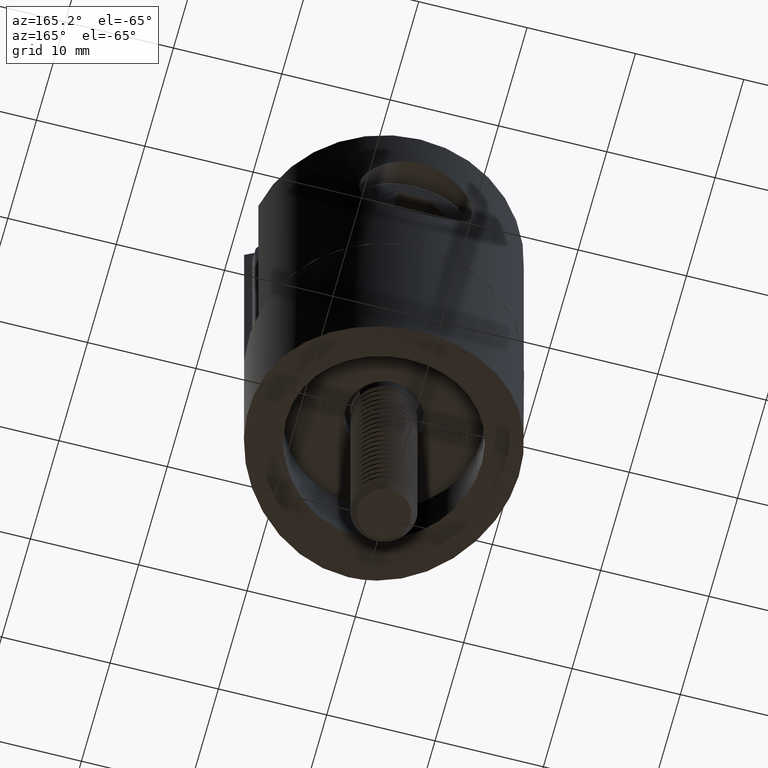
[diagram: clean part render]
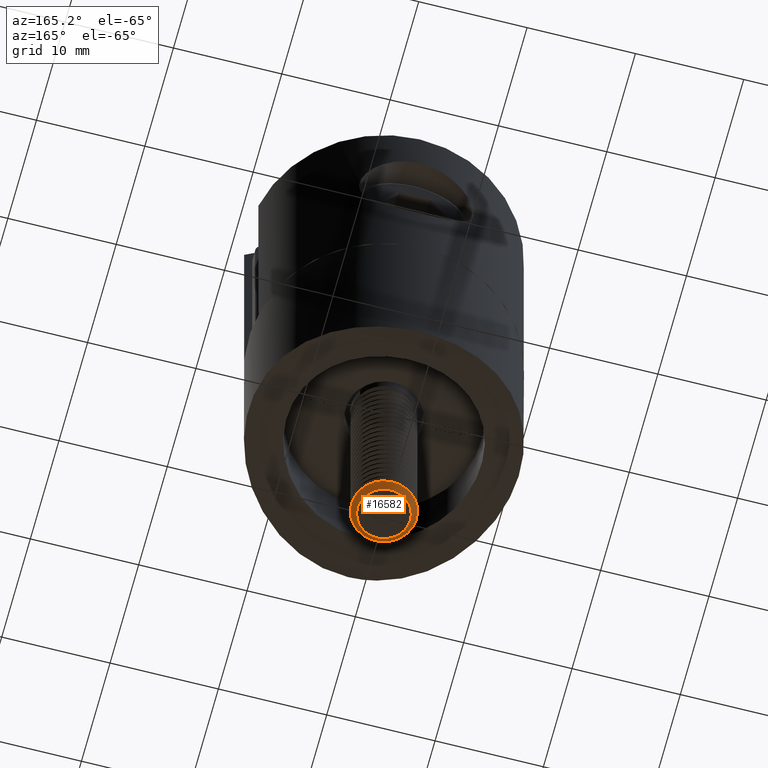
[diagram: same view with one face highlighted and labeled with its STEP entity id]
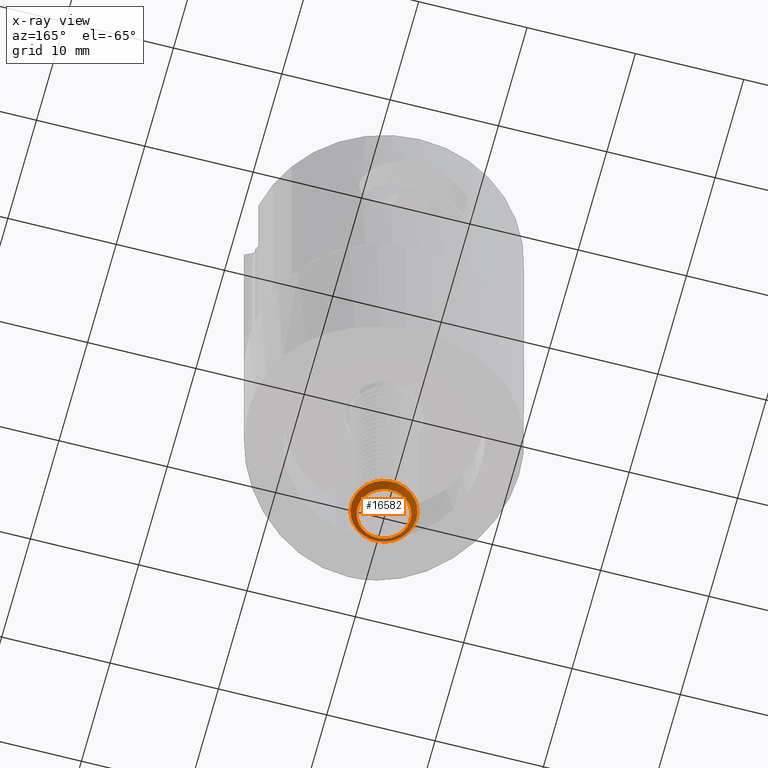
[diagram: x-ray of the same camera — body ghosted, the highlighted face saturated]
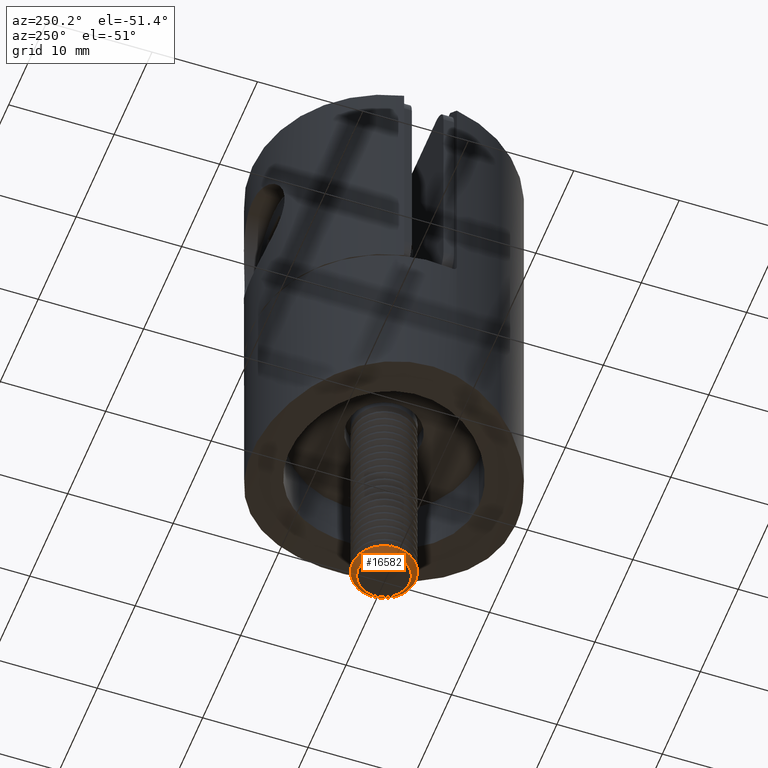
[diagram: same view with one face highlighted and labeled with its STEP entity id]
A machine part, auxiliary view. The second image highlights one B-rep face of the part: STEP entity #16582.
The next image is the same camera in x-ray: the body ghosted, the highlighted face saturated — about 0% of this face is hidden behind the body in this view.
A second angle (auxiliary view) of the same face is appended — the face is thin or edge-on in the first view.
In plain terms, the highlighted conical surface has half-angle 45 deg.
Its self-contained STEP definition (entity closure, byte-faithful):
#1312 = DIRECTION ( 'NONE',  ( 0.000000000000000000, 0.000000000000000000, 1.000000000000000000 ) ) ;
#3325 = CARTESIAN_POINT ( 'NONE',  ( 25.00000000000000000, 0.000000000000000000, 2.445500000000000007 ) ) ;
#3874 = ORIENTED_EDGE ( 'NONE', *, *, #21080, .T. ) ;
#4288 = EDGE_LOOP ( 'NONE', ( #3874 ) ) ;
#6319 = ORIENTED_EDGE ( 'NONE', *, *, #8594, .F. ) ;
#6905 = DIRECTION ( 'NONE',  ( -1.000000000000000000, -0.000000000000000000, -0.000000000000000000 ) ) ;
#7892 = VERTEX_POINT ( 'NONE', #3325 ) ;
#8506 = CIRCLE ( 'NONE', #21873, 2.445500000000000007 ) ;
#8587 = FACE_BOUND ( 'NONE', #4288, .T. ) ;
#8594 = EDGE_CURVE ( 'NONE', #20472, #20472, #21801, .T. ) ;
#8982 = DIRECTION ( 'NONE',  ( -1.000000000000000000, -0.000000000000000000, -0.000000000000000000 ) ) ;
#10201 = CARTESIAN_POINT ( 'NONE',  ( 25.00000000000000000, 0.000000000000000000, 0.000000000000000000 ) ) ;
#11975 = CARTESIAN_POINT ( 'NONE',  ( 25.00000000000000000, 0.000000000000000000, 0.000000000000000000 ) ) ;
#14134 = CARTESIAN_POINT ( 'NONE',  ( 24.44550000000002044, 0.000000000000000000, 0.000000000000000000 ) ) ;
#14368 = DIRECTION ( 'NONE',  ( 0.000000000000000000, 0.000000000000000000, 1.000000000000000000 ) ) ;
#15235 = EDGE_LOOP ( 'NONE', ( #6319 ) ) ;
#15423 = DIRECTION ( 'NONE',  ( -1.000000000000000000, -0.000000000000000000, -0.000000000000000000 ) ) ;
#16582 = ADVANCED_FACE ( 'NONE', ( #21693, #8587 ), #23059, .T. ) ;
#18468 = AXIS2_PLACEMENT_3D ( 'NONE', #14134, #8982, #14368 ) ;
#18883 = AXIS2_PLACEMENT_3D ( 'NONE', #11975, #6905, #1312 ) ;
#19098 = DIRECTION ( 'NONE',  ( 0.000000000000000000, 0.000000000000000000, 1.000000000000000000 ) ) ;
#20472 = VERTEX_POINT ( 'NONE', #22817 ) ;
#21080 = EDGE_CURVE ( 'NONE', #7892, #7892, #8506, .T. ) ;
#21693 = FACE_OUTER_BOUND ( 'NONE', #15235, .T. ) ;
#21801 = CIRCLE ( 'NONE', #18468, 3.000000000000000888 ) ;
#21873 = AXIS2_PLACEMENT_3D ( 'NONE', #10201, #15423, #19098 ) ;
#22817 = CARTESIAN_POINT ( 'NONE',  ( 24.44550000000002044, 0.000000000000000000, 3.000000000000000888 ) ) ;
#23059 = CONICAL_SURFACE ( 'NONE', #18883, 2.445500000000000007, 0.7853981633974651544 ) ;